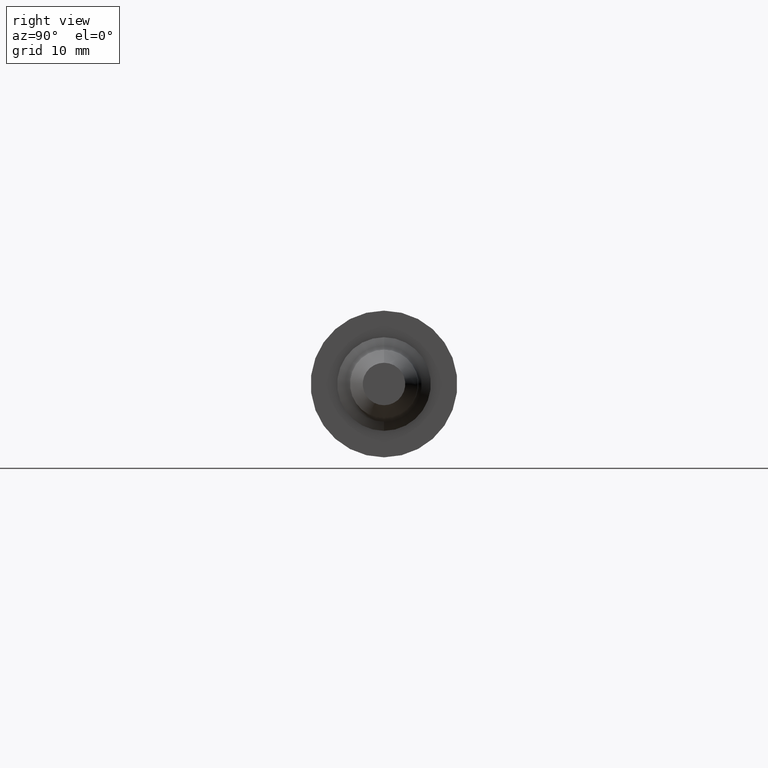
[diagram: clean part render]
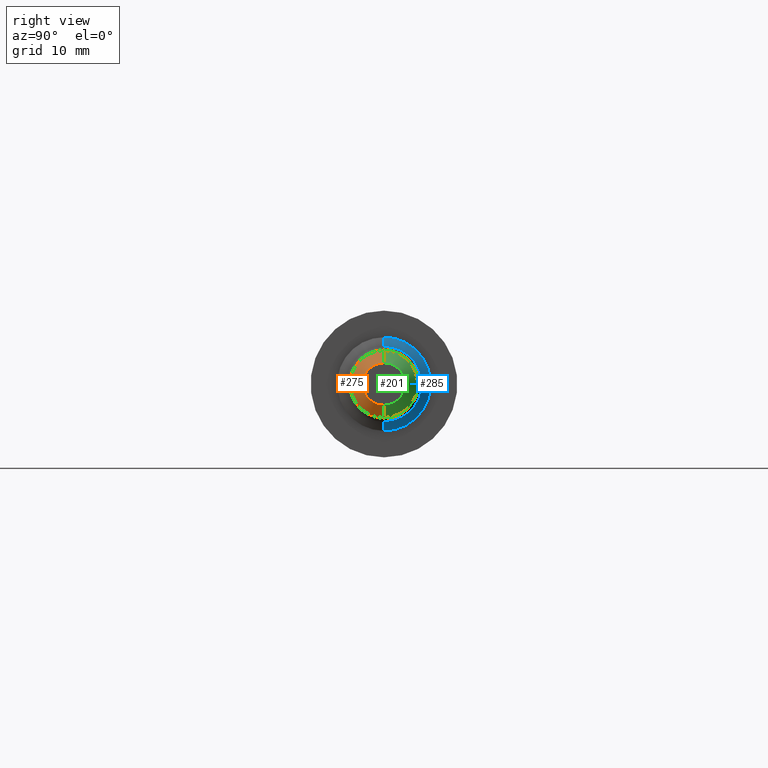
[diagram: same view with three faces highlighted in distinct colors, each labeled with its STEP entity id]
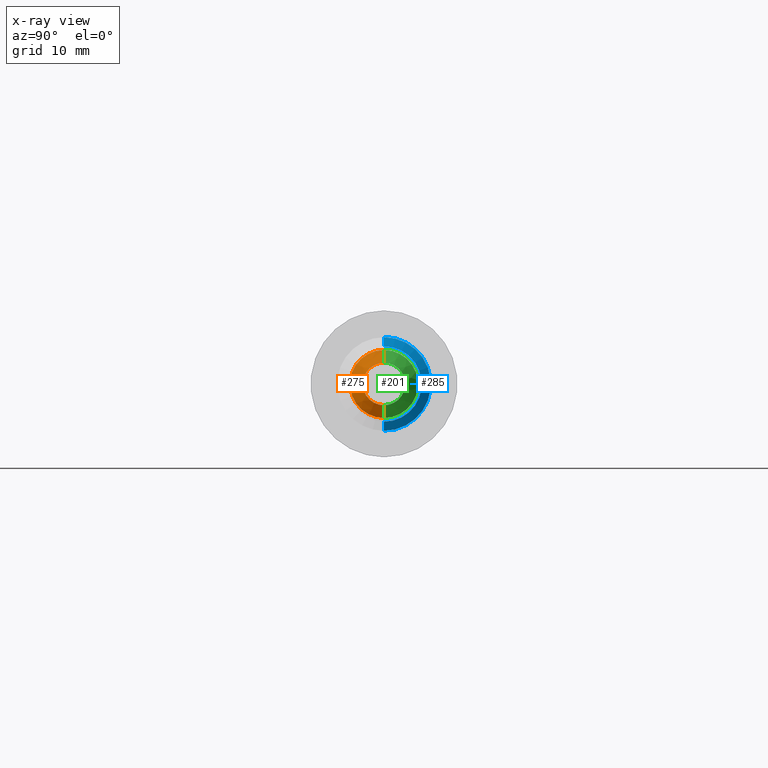
[diagram: x-ray of the same camera — body ghosted, the three highlighted faces saturated]
A machine part, right view with three faces highlighted in distinct colors.
The next image is the same camera in x-ray (body ghosted, the three faces saturated) — at least one of them is partly hidden behind the body in this view.
Their STEP definitions:

[orange] entity #275 — the highlighted conical surface has half-angle 45 deg.
#38 = CONICAL_SURFACE ( 'NONE', #59, 0.08325000000000011557, 0.7853981633974498333 ) ;
#49 = AXIS2_PLACEMENT_3D ( 'NONE', #557, #455, #175 ) ;
#52 = EDGE_LOOP ( 'NONE', ( #507, #104, #236, #393 ) ) ;
#59 = AXIS2_PLACEMENT_3D ( 'NONE', #355, #100, #265 ) ;
#100 = DIRECTION ( 'NONE',  ( -1.000000000000000000, -0.000000000000000000, -0.000000000000000000 ) ) ;
#104 = ORIENTED_EDGE ( 'NONE', *, *, #208, .T. ) ;
#110 = EDGE_CURVE ( 'NONE', #157, #313, #154, .T. ) ;
#118 = DIRECTION ( 'NONE',  ( -0.7071067811865464625, 8.659560562354947649E-17, -0.7071067811865486830 ) ) ;
#130 = CARTESIAN_POINT ( 'NONE',  ( 2.700000000000000178, 0.000000000000000000, 0.000000000000000000 ) ) ;
#154 = CIRCLE ( 'NONE', #360, 0.1332500000000000073 ) ;
#157 = VERTEX_POINT ( 'NONE', #468 ) ;
#175 = DIRECTION ( 'NONE',  ( 0.000000000000000000, 0.000000000000000000, 1.000000000000000000 ) ) ;
#187 = VERTEX_POINT ( 'NONE', #369 ) ;
#208 = EDGE_CURVE ( 'NONE', #187, #442, #340, .T. ) ;
#216 = DIRECTION ( 'NONE',  ( -1.000000000000000000, -0.000000000000000000, -0.000000000000000000 ) ) ;
#224 = EDGE_CURVE ( 'NONE', #442, #313, #247, .T. ) ;
#231 = CARTESIAN_POINT ( 'NONE',  ( 2.700000000000000178, 0.000000000000000000, 0.1332500000000000073 ) ) ;
#236 = ORIENTED_EDGE ( 'NONE', *, *, #224, .T. ) ;
#247 = LINE ( 'NONE', #511, #553 ) ;
#265 = DIRECTION ( 'NONE',  ( 0.000000000000000000, 0.000000000000000000, 1.000000000000000000 ) ) ;
#275 = ADVANCED_FACE ( 'NONE', ( #532 ), #38, .T. ) ;
#298 = DIRECTION ( 'NONE',  ( 0.000000000000000000, 0.000000000000000000, 1.000000000000000000 ) ) ;
#313 = VERTEX_POINT ( 'NONE', #231 ) ;
#340 = CIRCLE ( 'NONE', #49, 0.08325000000000011557 ) ;
#355 = CARTESIAN_POINT ( 'NONE',  ( 2.750000000000000000, 0.000000000000000000, 0.000000000000000000 ) ) ;
#360 = AXIS2_PLACEMENT_3D ( 'NONE', #130, #216, #298 ) ;
#369 = CARTESIAN_POINT ( 'NONE',  ( 2.750000000000000000, 1.325680160077010609E-17, -0.08325000000000011557 ) ) ;
#393 = ORIENTED_EDGE ( 'NONE', *, *, #110, .F. ) ;
#409 = DIRECTION ( 'NONE',  ( -0.7071067811865464625, 0.000000000000000000, 0.7071067811865486830 ) ) ;
#442 = VERTEX_POINT ( 'NONE', #510 ) ;
#455 = DIRECTION ( 'NONE',  ( -1.000000000000000000, -0.000000000000000000, -0.000000000000000000 ) ) ;
#468 = CARTESIAN_POINT ( 'NONE',  ( 2.700000000000000178, 1.631841859863848233E-17, -0.1332500000000000073 ) ) ;
#476 = CARTESIAN_POINT ( 'NONE',  ( 2.750000000000000000, 1.019518460290172985E-17, -0.08325000000000011557 ) ) ;
#485 = VECTOR ( 'NONE', #118, 39.37007874015748143 ) ;
#502 = EDGE_CURVE ( 'NONE', #187, #157, #503, .T. ) ;
#503 = LINE ( 'NONE', #476, #485 ) ;
#507 = ORIENTED_EDGE ( 'NONE', *, *, #502, .F. ) ;
#510 = CARTESIAN_POINT ( 'NONE',  ( 2.750000000000000000, 0.000000000000000000, 0.08325000000000011557 ) ) ;
#511 = CARTESIAN_POINT ( 'NONE',  ( 2.750000000000000000, 0.000000000000000000, 0.08325000000000011557 ) ) ;
#532 = FACE_OUTER_BOUND ( 'NONE', #52, .T. ) ;
#553 = VECTOR ( 'NONE', #409, 39.37007874015748143 ) ;
#557 = CARTESIAN_POINT ( 'NONE',  ( 2.750000000000000000, 0.000000000000000000, 0.000000000000000000 ) ) ;

[blue] entity #285 — the highlighted conical surface has half-angle 60 deg.
#4 = FACE_OUTER_BOUND ( 'NONE', #8, .T. ) ;
#8 = EDGE_LOOP ( 'NONE', ( #273, #531, #12, #356 ) ) ;
#12 = ORIENTED_EDGE ( 'NONE', *, *, #45, .F. ) ;
#20 = VERTEX_POINT ( 'NONE', #494 ) ;
#45 = EDGE_CURVE ( 'NONE', #20, #242, #319, .T. ) ;
#54 = DIRECTION ( 'NONE',  ( -0.4999999999999977240, 1.060575238724908517E-16, -0.8660254037844398178 ) ) ;
#64 = AXIS2_PLACEMENT_3D ( 'NONE', #149, #346, #183 ) ;
#70 = AXIS2_PLACEMENT_3D ( 'NONE', #243, #370, #500 ) ;
#91 = CARTESIAN_POINT ( 'NONE',  ( 2.650640272123529151, 0.000000000000000000, 0.1477500000000001590 ) ) ;
#94 = CARTESIAN_POINT ( 'NONE',  ( 2.650640272123529151, 1.809415645740216520E-17, -0.1477500000000001590 ) ) ;
#98 = CIRCLE ( 'NONE', #312, 0.1477500000000001590 ) ;
#133 = DIRECTION ( 'NONE',  ( -1.000000000000000000, -0.000000000000000000, -0.000000000000000000 ) ) ;
#139 = LINE ( 'NONE', #91, #161 ) ;
#149 = CARTESIAN_POINT ( 'NONE',  ( 2.650640272123529151, 0.000000000000000000, 0.000000000000000000 ) ) ;
#161 = VECTOR ( 'NONE', #474, 39.37007874015748143 ) ;
#166 = CARTESIAN_POINT ( 'NONE',  ( 2.629999999999999893, 2.247226876435393398E-17, -0.1834999999999999964 ) ) ;
#170 = CARTESIAN_POINT ( 'NONE',  ( 2.650640272123529151, 1.809415645740214979E-17, -0.1477500000000000757 ) ) ;
#179 = CARTESIAN_POINT ( 'NONE',  ( 2.650640272123529151, 0.000000000000000000, 0.000000000000000000 ) ) ;
#181 = VERTEX_POINT ( 'NONE', #170 ) ;
#183 = DIRECTION ( 'NONE',  ( 0.000000000000000000, 0.000000000000000000, 1.000000000000000000 ) ) ;
#242 = VERTEX_POINT ( 'NONE', #166 ) ;
#243 = CARTESIAN_POINT ( 'NONE',  ( 2.629999999999999893, 0.000000000000000000, 0.000000000000000000 ) ) ;
#260 = VERTEX_POINT ( 'NONE', #344 ) ;
#273 = ORIENTED_EDGE ( 'NONE', *, *, #294, .T. ) ;
#285 = ADVANCED_FACE ( 'NONE', ( #4 ), #399, .T. ) ;
#294 = EDGE_CURVE ( 'NONE', #260, #181, #98, .T. ) ;
#312 = AXIS2_PLACEMENT_3D ( 'NONE', #179, #133, #349 ) ;
#319 = CIRCLE ( 'NONE', #70, 0.1834999999999999964 ) ;
#344 = CARTESIAN_POINT ( 'NONE',  ( 2.650640272123529151, 0.000000000000000000, 0.1477500000000000757 ) ) ;
#346 = DIRECTION ( 'NONE',  ( -1.000000000000000000, -0.000000000000000000, -0.000000000000000000 ) ) ;
#349 = DIRECTION ( 'NONE',  ( 0.000000000000000000, 0.000000000000000000, 1.000000000000000000 ) ) ;
#356 = ORIENTED_EDGE ( 'NONE', *, *, #402, .F. ) ;
#370 = DIRECTION ( 'NONE',  ( -1.000000000000000000, -0.000000000000000000, -0.000000000000000000 ) ) ;
#375 = EDGE_CURVE ( 'NONE', #181, #242, #561, .T. ) ;
#399 = CONICAL_SURFACE ( 'NONE', #64, 0.1477500000000001590, 1.047197551196600296 ) ;
#402 = EDGE_CURVE ( 'NONE', #260, #20, #139, .T. ) ;
#473 = VECTOR ( 'NONE', #54, 39.37007874015748143 ) ;
#474 = DIRECTION ( 'NONE',  ( -0.4999999999999977240, 0.000000000000000000, 0.8660254037844398178 ) ) ;
#494 = CARTESIAN_POINT ( 'NONE',  ( 2.629999999999999893, 0.000000000000000000, 0.1834999999999999964 ) ) ;
#500 = DIRECTION ( 'NONE',  ( 0.000000000000000000, 0.000000000000000000, 1.000000000000000000 ) ) ;
#531 = ORIENTED_EDGE ( 'NONE', *, *, #375, .T. ) ;
#561 = LINE ( 'NONE', #94, #473 ) ;

[green] entity #201 — the highlighted conical surface has half-angle 45 deg.
#56 = ORIENTED_EDGE ( 'NONE', *, *, #416, .F. ) ;
#81 = CARTESIAN_POINT ( 'NONE',  ( 2.700000000000000178, 0.000000000000000000, 0.000000000000000000 ) ) ;
#114 = DIRECTION ( 'NONE',  ( -1.000000000000000000, -0.000000000000000000, -0.000000000000000000 ) ) ;
#118 = DIRECTION ( 'NONE',  ( -0.7071067811865464625, 8.659560562354947649E-17, -0.7071067811865486830 ) ) ;
#122 = CIRCLE ( 'NONE', #460, 0.08325000000000011557 ) ;
#156 = CONICAL_SURFACE ( 'NONE', #371, 0.08325000000000011557, 0.7853981633974498333 ) ;
#157 = VERTEX_POINT ( 'NONE', #468 ) ;
#169 = DIRECTION ( 'NONE',  ( -1.000000000000000000, -0.000000000000000000, -0.000000000000000000 ) ) ;
#187 = VERTEX_POINT ( 'NONE', #369 ) ;
#201 = ADVANCED_FACE ( 'NONE', ( #499 ), #156, .T. ) ;
#213 = CARTESIAN_POINT ( 'NONE',  ( 2.750000000000000000, 0.000000000000000000, 0.000000000000000000 ) ) ;
#221 = DIRECTION ( 'NONE',  ( 0.000000000000000000, 0.000000000000000000, 1.000000000000000000 ) ) ;
#224 = EDGE_CURVE ( 'NONE', #442, #313, #247, .T. ) ;
#231 = CARTESIAN_POINT ( 'NONE',  ( 2.700000000000000178, 0.000000000000000000, 0.1332500000000000073 ) ) ;
#247 = LINE ( 'NONE', #511, #553 ) ;
#248 = EDGE_CURVE ( 'NONE', #442, #187, #122, .T. ) ;
#283 = DIRECTION ( 'NONE',  ( 0.000000000000000000, 0.000000000000000000, 1.000000000000000000 ) ) ;
#290 = DIRECTION ( 'NONE',  ( 0.000000000000000000, 0.000000000000000000, 1.000000000000000000 ) ) ;
#313 = VERTEX_POINT ( 'NONE', #231 ) ;
#317 = ORIENTED_EDGE ( 'NONE', *, *, #248, .T. ) ;
#361 = CIRCLE ( 'NONE', #493, 0.1332500000000000073 ) ;
#369 = CARTESIAN_POINT ( 'NONE',  ( 2.750000000000000000, 1.325680160077010609E-17, -0.08325000000000011557 ) ) ;
#371 = AXIS2_PLACEMENT_3D ( 'NONE', #213, #114, #283 ) ;
#372 = DIRECTION ( 'NONE',  ( -1.000000000000000000, -0.000000000000000000, -0.000000000000000000 ) ) ;
#409 = DIRECTION ( 'NONE',  ( -0.7071067811865464625, 0.000000000000000000, 0.7071067811865486830 ) ) ;
#416 = EDGE_CURVE ( 'NONE', #313, #157, #361, .T. ) ;
#442 = VERTEX_POINT ( 'NONE', #510 ) ;
#459 = ORIENTED_EDGE ( 'NONE', *, *, #224, .F. ) ;
#460 = AXIS2_PLACEMENT_3D ( 'NONE', #501, #372, #290 ) ;
#468 = CARTESIAN_POINT ( 'NONE',  ( 2.700000000000000178, 1.631841859863848233E-17, -0.1332500000000000073 ) ) ;
#475 = ORIENTED_EDGE ( 'NONE', *, *, #502, .T. ) ;
#476 = CARTESIAN_POINT ( 'NONE',  ( 2.750000000000000000, 1.019518460290172985E-17, -0.08325000000000011557 ) ) ;
#485 = VECTOR ( 'NONE', #118, 39.37007874015748143 ) ;
#493 = AXIS2_PLACEMENT_3D ( 'NONE', #81, #169, #221 ) ;
#499 = FACE_OUTER_BOUND ( 'NONE', #552, .T. ) ;
#501 = CARTESIAN_POINT ( 'NONE',  ( 2.750000000000000000, 0.000000000000000000, 0.000000000000000000 ) ) ;
#502 = EDGE_CURVE ( 'NONE', #187, #157, #503, .T. ) ;
#503 = LINE ( 'NONE', #476, #485 ) ;
#510 = CARTESIAN_POINT ( 'NONE',  ( 2.750000000000000000, 0.000000000000000000, 0.08325000000000011557 ) ) ;
#511 = CARTESIAN_POINT ( 'NONE',  ( 2.750000000000000000, 0.000000000000000000, 0.08325000000000011557 ) ) ;
#552 = EDGE_LOOP ( 'NONE', ( #317, #475, #56, #459 ) ) ;
#553 = VECTOR ( 'NONE', #409, 39.37007874015748143 ) ;